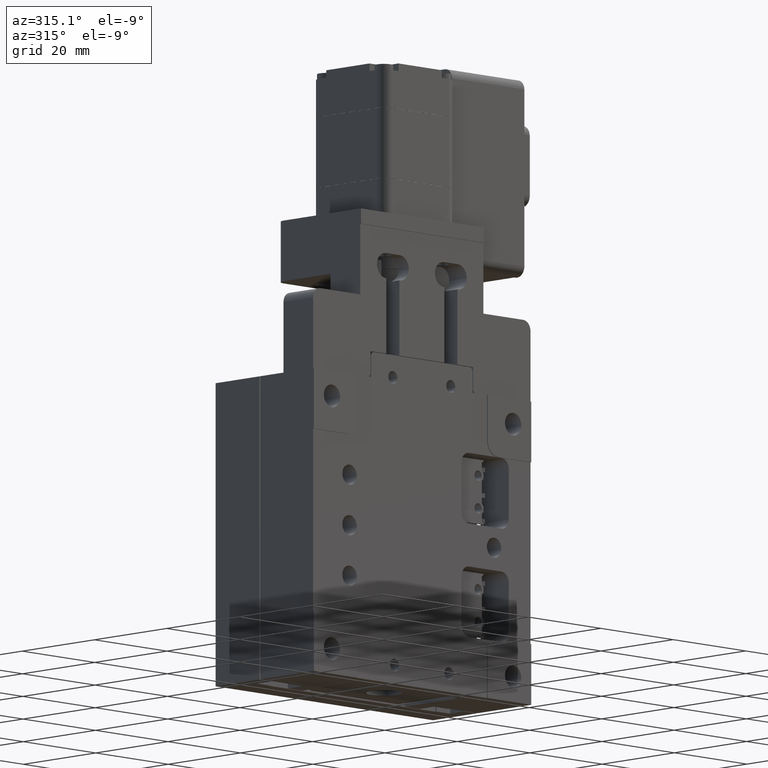
[diagram: clean part render]
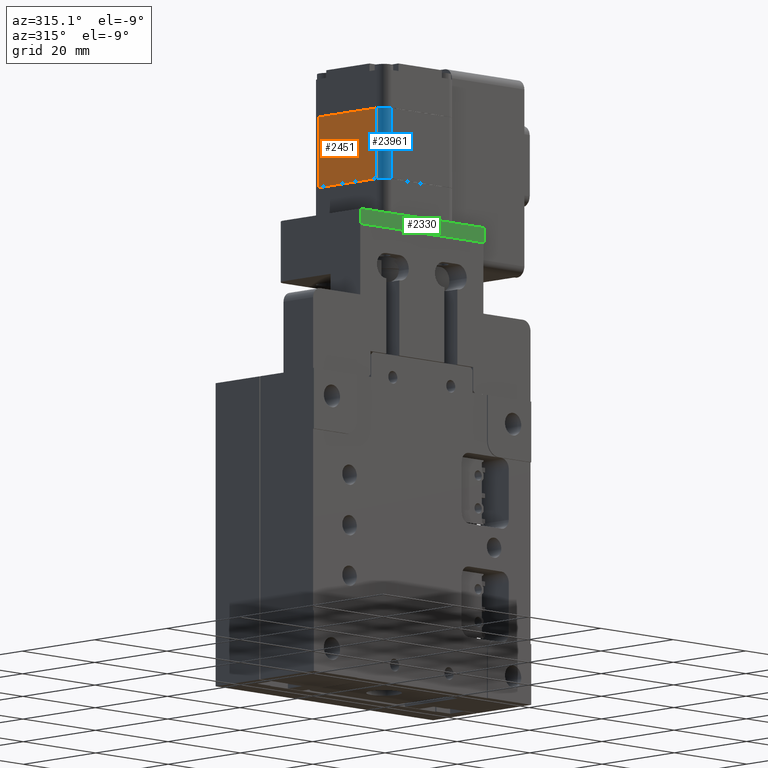
[diagram: same view with three faces highlighted in distinct colors, each labeled with its STEP entity id]
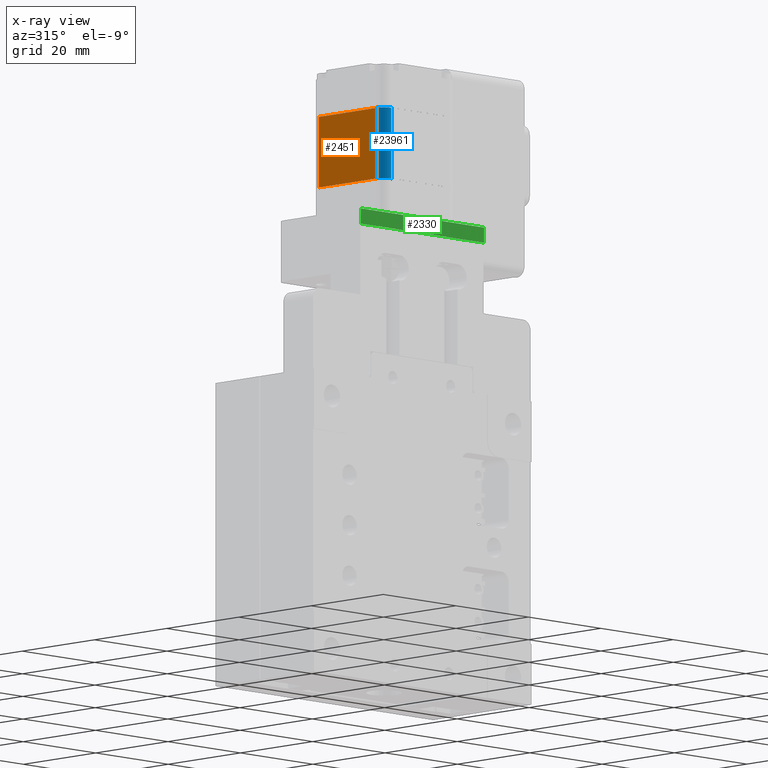
[diagram: x-ray of the same camera — body ghosted, the three highlighted faces saturated]
A machine part, auxiliary view with three faces highlighted in distinct colors.
The next image is the same camera in x-ray (body ghosted, the three faces saturated) — at least one of them is partly hidden behind the body in this view.
Their STEP definitions:

[orange] entity #2451 — the highlighted planar face has unit normal (1, -0, 0).
#815 = EDGE_CURVE ( 'NONE', #8894, #8781, #4766, .T. ) ;
#1003 = CARTESIAN_POINT ( 'NONE',  ( -12.59171959880753300, 5.551812454014355900, 155.5000000000000000 ) ) ;
#2322 = VERTEX_POINT ( 'NONE', #26091 ) ;
#2451 = ADVANCED_FACE ( 'NONE', ( #32657 ), #10976, .F. ) ;
#4766 = LINE ( 'NONE', #14725, #31181 ) ;
#7484 = ORIENTED_EDGE ( 'NONE', *, *, #815, .T. ) ;
#8017 = CARTESIAN_POINT ( 'NONE',  ( -12.59171959880753300, 5.551812454014355900, 146.4900000000000100 ) ) ;
#8781 = VERTEX_POINT ( 'NONE', #8017 ) ;
#8894 = VERTEX_POINT ( 'NONE', #21389 ) ;
#10407 = EDGE_CURVE ( 'NONE', #28769, #2322, #25347, .T. ) ;
#10976 = PLANE ( 'NONE',  #14299 ) ;
#11082 = LINE ( 'NONE', #17373, #23867 ) ;
#11324 = DIRECTION ( 'NONE',  ( 1.000000000000000000, -2.042810365310287700E-014, 6.888773939819953300E-017 ) ) ;
#11449 = ORIENTED_EDGE ( 'NONE', *, *, #21558, .F. ) ;
#11832 = CARTESIAN_POINT ( 'NONE',  ( -12.59171959880785600, -10.44818754598565000, 132.5099999999999900 ) ) ;
#13319 = ORIENTED_EDGE ( 'NONE', *, *, #10407, .F. ) ;
#14299 = AXIS2_PLACEMENT_3D ( 'NONE', #26618, #11324, #29202 ) ;
#14725 = CARTESIAN_POINT ( 'NONE',  ( -12.59171959880769600, -2.448187545985645900, 146.4900000000000100 ) ) ;
#14963 = DIRECTION ( 'NONE',  ( 6.888773939819801700E-017, -7.259004801912985300E-017, -1.000000000000000000 ) ) ;
#16148 = ORIENTED_EDGE ( 'NONE', *, *, #19782, .F. ) ;
#16154 = DIRECTION ( 'NONE',  ( 2.042810365310287700E-014, 1.000000000000000000, -7.259004801912842300E-017 ) ) ;
#17373 = CARTESIAN_POINT ( 'NONE',  ( -12.59171959880785600, -10.44818754598565000, 125.5000000000000000 ) ) ;
#17389 = EDGE_LOOP ( 'NONE', ( #7484, #16148, #13319, #11449 ) ) ;
#18601 = CARTESIAN_POINT ( 'NONE',  ( -12.59171959880748800, 7.551812454014354100, 132.5099999999999900 ) ) ;
#19782 = EDGE_CURVE ( 'NONE', #2322, #8781, #26944, .T. ) ;
#21389 = CARTESIAN_POINT ( 'NONE',  ( -12.59171959880785800, -10.44818754598564700, 146.4900000000000100 ) ) ;
#21558 = EDGE_CURVE ( 'NONE', #8894, #28769, #11082, .T. ) ;
#23867 = VECTOR ( 'NONE', #14963, 1000.000000000000000 ) ;
#25347 = LINE ( 'NONE', #18601, #31298 ) ;
#26091 = CARTESIAN_POINT ( 'NONE',  ( -12.59171959880753100, 5.551812454014354100, 132.5099999999999900 ) ) ;
#26154 = VECTOR ( 'NONE', #26659, 1000.000000000000000 ) ;
#26618 = CARTESIAN_POINT ( 'NONE',  ( -12.59171959880748800, 7.551812454014354100, 125.5000000000000000 ) ) ;
#26659 = DIRECTION ( 'NONE',  ( -6.888773939819801700E-017, 7.259004801912985300E-017, 1.000000000000000000 ) ) ;
#26944 = LINE ( 'NONE', #1003, #26154 ) ;
#28769 = VERTEX_POINT ( 'NONE', #11832 ) ;
#29202 = DIRECTION ( 'NONE',  ( -2.042810365310287700E-014, -1.000000000000000000, 7.259004801912842300E-017 ) ) ;
#30101 = DIRECTION ( 'NONE',  ( 2.042810365310287700E-014, 1.000000000000000000, -7.259004801912842300E-017 ) ) ;
#31181 = VECTOR ( 'NONE', #30101, 1000.000000000000000 ) ;
#31298 = VECTOR ( 'NONE', #16154, 1000.000000000000000 ) ;
#32657 = FACE_OUTER_BOUND ( 'NONE', #17389, .T. ) ;

[blue] entity #23961 — the highlighted cylindrical surface (edge-blend (fillet) strip) has radius 2 mm, axis along (-0, 0, 1).
#950 = EDGE_LOOP ( 'NONE', ( #1870, #33168, #27764, #13453 ) ) ;
#1739 = CARTESIAN_POINT ( 'NONE',  ( -10.59171959880785800, -10.44818754598568800, 146.4900000000000100 ) ) ;
#1870 = ORIENTED_EDGE ( 'NONE', *, *, #22442, .T. ) ;
#4286 = DIRECTION ( 'NONE',  ( 2.081668171172168500E-014, 1.000000000000000000, 0.0000000000000000000 ) ) ;
#7239 = CYLINDRICAL_SURFACE ( 'NONE', #26463, 2.000000000000000000 ) ;
#7400 = DIRECTION ( 'NONE',  ( -6.888773939819801700E-017, 7.259004801912985300E-017, 1.000000000000000000 ) ) ;
#8894 = VERTEX_POINT ( 'NONE', #21389 ) ;
#9019 = DIRECTION ( 'NONE',  ( -6.888773939819801700E-017, 7.259004801912985300E-017, 1.000000000000000000 ) ) ;
#10280 = CIRCLE ( 'NONE', #17649, 2.000000000000000000 ) ;
#11082 = LINE ( 'NONE', #17373, #23867 ) ;
#11706 = CARTESIAN_POINT ( 'NONE',  ( -10.59171959880789900, -12.44818754598568900, 132.5099999999999900 ) ) ;
#11832 = CARTESIAN_POINT ( 'NONE',  ( -12.59171959880785600, -10.44818754598565000, 132.5099999999999900 ) ) ;
#13453 = ORIENTED_EDGE ( 'NONE', *, *, #21558, .T. ) ;
#14963 = DIRECTION ( 'NONE',  ( 6.888773939819801700E-017, -7.259004801912985300E-017, -1.000000000000000000 ) ) ;
#15246 = EDGE_CURVE ( 'NONE', #19888, #25534, #23262, .T. ) ;
#15532 = DIRECTION ( 'NONE',  ( -6.888773939819801700E-017, 7.259004801912985300E-017, 1.000000000000000000 ) ) ;
#16504 = VECTOR ( 'NONE', #7400, 1000.000000000000000 ) ;
#16782 = AXIS2_PLACEMENT_3D ( 'NONE', #24375, #9019, #26912 ) ;
#17373 = CARTESIAN_POINT ( 'NONE',  ( -12.59171959880785600, -10.44818754598565000, 125.5000000000000000 ) ) ;
#17649 = AXIS2_PLACEMENT_3D ( 'NONE', #1739, #19686, #4286 ) ;
#18179 = DIRECTION ( 'NONE',  ( 2.081668171172168500E-014, 1.000000000000000000, 0.0000000000000000000 ) ) ;
#19686 = DIRECTION ( 'NONE',  ( 6.888773939819801700E-017, -7.259004801912985300E-017, -1.000000000000000000 ) ) ;
#19888 = VERTEX_POINT ( 'NONE', #11706 ) ;
#21178 = CARTESIAN_POINT ( 'NONE',  ( -10.59171959880790000, -12.44818754598568900, 146.4900000000000100 ) ) ;
#21389 = CARTESIAN_POINT ( 'NONE',  ( -12.59171959880785800, -10.44818754598564700, 146.4900000000000100 ) ) ;
#21558 = EDGE_CURVE ( 'NONE', #8894, #28769, #11082, .T. ) ;
#22442 = EDGE_CURVE ( 'NONE', #28769, #19888, #30538, .T. ) ;
#23241 = FACE_OUTER_BOUND ( 'NONE', #950, .T. ) ;
#23262 = LINE ( 'NONE', #32883, #16504 ) ;
#23867 = VECTOR ( 'NONE', #14963, 1000.000000000000000 ) ;
#23961 = ADVANCED_FACE ( 'NONE', ( #23241 ), #7239, .T. ) ;
#24375 = CARTESIAN_POINT ( 'NONE',  ( -10.59171959880785600, -10.44818754598568800, 132.5099999999999900 ) ) ;
#25534 = VERTEX_POINT ( 'NONE', #21178 ) ;
#26463 = AXIS2_PLACEMENT_3D ( 'NONE', #30786, #15532, #18179 ) ;
#26912 = DIRECTION ( 'NONE',  ( 2.081668171172168500E-014, 1.000000000000000000, 0.0000000000000000000 ) ) ;
#27764 = ORIENTED_EDGE ( 'NONE', *, *, #32193, .T. ) ;
#28769 = VERTEX_POINT ( 'NONE', #11832 ) ;
#30538 = CIRCLE ( 'NONE', #16782, 2.000000000000000000 ) ;
#30786 = CARTESIAN_POINT ( 'NONE',  ( -10.59171959880785800, -10.44818754598568800, 155.5000000000000000 ) ) ;
#32193 = EDGE_CURVE ( 'NONE', #25534, #8894, #10280, .T. ) ;
#32883 = CARTESIAN_POINT ( 'NONE',  ( -10.59171959880790000, -12.44818754598568900, 155.5000000000000000 ) ) ;
#33168 = ORIENTED_EDGE ( 'NONE', *, *, #15246, .T. ) ;

[green] entity #2330 — the highlighted planar face has unit normal (-0, -1, 0).
#939 = CARTESIAN_POINT ( 'NONE',  ( 14.40828040119247800, -13.09818754598602400, 125.5000000000000000 ) ) ;
#2148 = CARTESIAN_POINT ( 'NONE',  ( -19.59171959880750400, -13.09818754598602000, 122.5000000000000000 ) ) ;
#2330 = ADVANCED_FACE ( 'NONE', ( #3415 ), #8157, .T. ) ;
#3415 = FACE_OUTER_BOUND ( 'NONE', #16687, .T. ) ;
#3428 = DIRECTION ( 'NONE',  ( 0.0000000000000000000, 0.0000000000000000000, -1.000000000000000000 ) ) ;
#3752 = DIRECTION ( 'NONE',  ( -1.000000000000000000, 1.020425574104004700E-016, 0.0000000000000000000 ) ) ;
#3765 = CARTESIAN_POINT ( 'NONE',  ( -19.59171959880750400, -13.09818754598602000, 125.5000000000000000 ) ) ;
#4017 = EDGE_CURVE ( 'NONE', #11966, #9168, #25419, .T. ) ;
#4580 = EDGE_CURVE ( 'NONE', #11966, #11853, #15039, .T. ) ;
#4957 = VECTOR ( 'NONE', #3752, 1000.000000000000000 ) ;
#5706 = CARTESIAN_POINT ( 'NONE',  ( -2.591719598807524800, -13.09818754598602200, 113.5000000000000000 ) ) ;
#6824 = CARTESIAN_POINT ( 'NONE',  ( 14.40828040119247800, -13.09818754598602400, 120.5000000000000100 ) ) ;
#8157 = PLANE ( 'NONE',  #30324 ) ;
#8288 = DIRECTION ( 'NONE',  ( 1.000000000000000000, -1.020425574104004700E-016, 0.0000000000000000000 ) ) ;
#9168 = VERTEX_POINT ( 'NONE', #2148 ) ;
#9397 = DIRECTION ( 'NONE',  ( -0.0000000000000000000, -0.0000000000000000000, 1.000000000000000000 ) ) ;
#9808 = VERTEX_POINT ( 'NONE', #15467 ) ;
#11427 = CARTESIAN_POINT ( 'NONE',  ( -2.591719598807524800, -13.09818754598602200, 122.5000000000000000 ) ) ;
#11853 = VERTEX_POINT ( 'NONE', #939 ) ;
#11885 = LINE ( 'NONE', #3765, #30629 ) ;
#11966 = VERTEX_POINT ( 'NONE', #19455 ) ;
#14225 = VECTOR ( 'NONE', #9397, 1000.000000000000000 ) ;
#15039 = LINE ( 'NONE', #6824, #14225 ) ;
#15467 = CARTESIAN_POINT ( 'NONE',  ( -19.59171959880750400, -13.09818754598602000, 125.5000000000000000 ) ) ;
#15529 = ORIENTED_EDGE ( 'NONE', *, *, #33210, .F. ) ;
#16687 = EDGE_LOOP ( 'NONE', ( #29128, #29853, #15529, #29328 ) ) ;
#18120 = LINE ( 'NONE', #28954, #30892 ) ;
#19455 = CARTESIAN_POINT ( 'NONE',  ( 14.40828040119247800, -13.09818754598602400, 122.5000000000000000 ) ) ;
#23475 = EDGE_CURVE ( 'NONE', #9808, #9168, #18120, .T. ) ;
#23593 = DIRECTION ( 'NONE',  ( -1.020425574104004700E-016, -1.000000000000000000, 0.0000000000000000000 ) ) ;
#24304 = DIRECTION ( 'NONE',  ( 1.000000000000000000, -1.020425574104004700E-016, 0.0000000000000000000 ) ) ;
#25419 = LINE ( 'NONE', #11427, #4957 ) ;
#28954 = CARTESIAN_POINT ( 'NONE',  ( -19.59171959880750400, -13.09818754598602000, 120.5000000000000100 ) ) ;
#29128 = ORIENTED_EDGE ( 'NONE', *, *, #4017, .F. ) ;
#29328 = ORIENTED_EDGE ( 'NONE', *, *, #23475, .T. ) ;
#29853 = ORIENTED_EDGE ( 'NONE', *, *, #4580, .T. ) ;
#30324 = AXIS2_PLACEMENT_3D ( 'NONE', #5706, #23593, #8288 ) ;
#30629 = VECTOR ( 'NONE', #24304, 1000.000000000000000 ) ;
#30892 = VECTOR ( 'NONE', #3428, 1000.000000000000000 ) ;
#33210 = EDGE_CURVE ( 'NONE', #9808, #11853, #11885, .T. ) ;